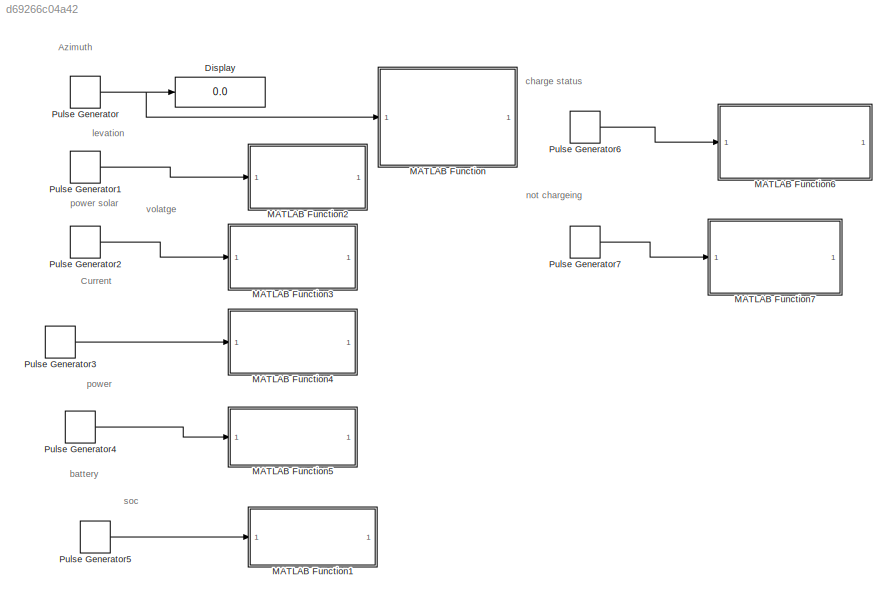
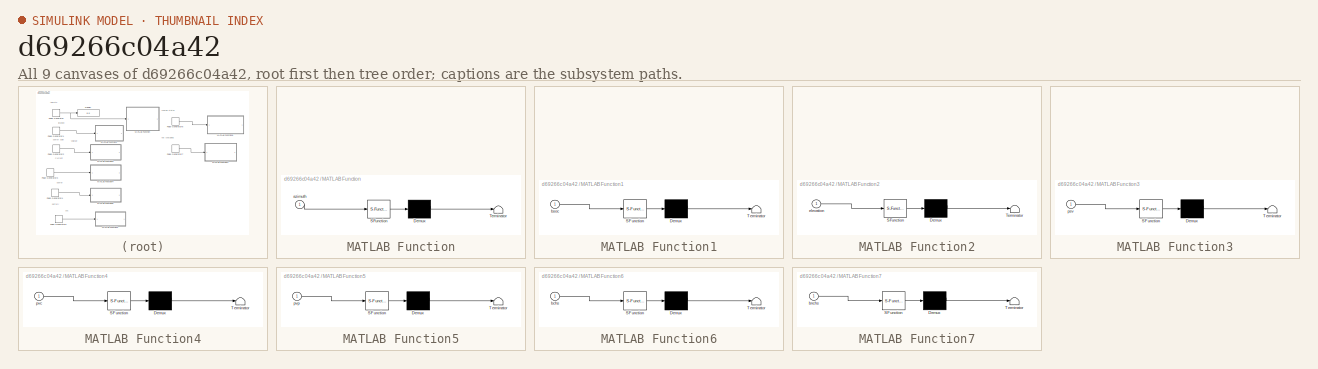
[diagram: thumbnail index - all 9 canvases of the model, root first then tree order]
MODEL slx_d69266c04a42
KIND model
CONFIG AbsTol = auto
CONFIG EnableMultiTasking = off
CONFIG FixedStep = auto
CONFIG MaxStep = auto
CONFIG MinStep = auto
CONFIG RelTol = 1e-3
CONFIG SampleTimeConstraint = Unconstrained
CONFIG SolverName = VariableStepAuto
CONFIG StartTime = 0.0
CONFIG StopTime = 10.0
BLOCK [Display] Display
  Decimation = 1
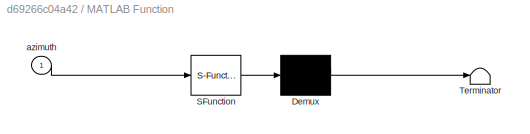
BLOCK [SubSystem] MATLAB Function
  ErrorFcn = Stateflow.Translate.translate
  PermitHierarchicalResolution = ExplicitOnly
  SFBlockType = MATLAB Function
  TreatAsAtomicUnit = on
BLOCK [Demux] MATLAB Function/ Demux 
  Outputs = 1
BLOCK [S-Function] MATLAB Function/ SFunction 
  EnableBusSupport = on
  FunctionName = sf_sfun
  PortCounts = [1 1]
  SFcnIsStateOwnerBlock = off
  SFunctionDeploymentMode = off
  Tag = Stateflow S-Function 2
BLOCK [Terminator] MATLAB Function/ Terminator 
BLOCK [Inport] MATLAB Function/azimuth
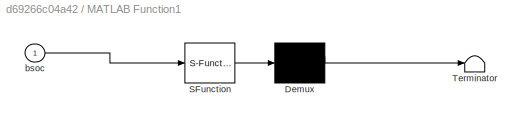
BLOCK [SubSystem] MATLAB Function1
  ErrorFcn = Stateflow.Translate.translate
  PermitHierarchicalResolution = ExplicitOnly
  SFBlockType = MATLAB Function
  TreatAsAtomicUnit = on
BLOCK [Demux] MATLAB Function1/ Demux 
  Outputs = 1
BLOCK [S-Function] MATLAB Function1/ SFunction 
  EnableBusSupport = on
  FunctionName = sf_sfun
  PortCounts = [1 1]
  SFcnIsStateOwnerBlock = off
  SFunctionDeploymentMode = off
  Tag = Stateflow S-Function 1
BLOCK [Terminator] MATLAB Function1/ Terminator 
BLOCK [Inport] MATLAB Function1/bsoc
BLOCK [SubSystem] MATLAB Function2
  ErrorFcn = Stateflow.Translate.translate
  PermitHierarchicalResolution = ExplicitOnly
  SFBlockType = MATLAB Function
  TreatAsAtomicUnit = on
BLOCK [Demux] MATLAB Function2/ Demux 
  Outputs = 1
BLOCK [S-Function] MATLAB Function2/ SFunction 
  EnableBusSupport = on
  FunctionName = sf_sfun
  PortCounts = [1 1]
  SFcnIsStateOwnerBlock = off
  SFunctionDeploymentMode = off
  Tag = Stateflow S-Function 3
BLOCK [Terminator] MATLAB Function2/ Terminator 
BLOCK [Inport] MATLAB Function2/elevation
BLOCK [SubSystem] MATLAB Function3
  ErrorFcn = Stateflow.Translate.translate
  PermitHierarchicalResolution = ExplicitOnly
  SFBlockType = MATLAB Function
  TreatAsAtomicUnit = on
BLOCK [Demux] MATLAB Function3/ Demux 
  Outputs = 1
BLOCK [S-Function] MATLAB Function3/ SFunction 
  EnableBusSupport = on
  FunctionName = sf_sfun
  PortCounts = [1 1]
  SFcnIsStateOwnerBlock = off
  SFunctionDeploymentMode = off
  Tag = Stateflow S-Function 4
BLOCK [Terminator] MATLAB Function3/ Terminator 
BLOCK [Inport] MATLAB Function3/psv
BLOCK [SubSystem] MATLAB Function4
  ErrorFcn = Stateflow.Translate.translate
  PermitHierarchicalResolution = ExplicitOnly
  SFBlockType = MATLAB Function
  TreatAsAtomicUnit = on
BLOCK [Demux] MATLAB Function4/ Demux 
  Outputs = 1
BLOCK [S-Function] MATLAB Function4/ SFunction 
  EnableBusSupport = on
  FunctionName = sf_sfun
  PortCounts = [1 1]
  SFcnIsStateOwnerBlock = off
  SFunctionDeploymentMode = off
  Tag = Stateflow S-Function 5
BLOCK [Terminator] MATLAB Function4/ Terminator 
BLOCK [Inport] MATLAB Function4/pvc
BLOCK [SubSystem] MATLAB Function5
  ErrorFcn = Stateflow.Translate.translate
  PermitHierarchicalResolution = ExplicitOnly
  SFBlockType = MATLAB Function
  TreatAsAtomicUnit = on
BLOCK [Demux] MATLAB Function5/ Demux 
  Outputs = 1
BLOCK [S-Function] MATLAB Function5/ SFunction 
  EnableBusSupport = on
  FunctionName = sf_sfun
  PortCounts = [1 1]
  SFcnIsStateOwnerBlock = off
  SFunctionDeploymentMode = off
  Tag = Stateflow S-Function 6
BLOCK [Terminator] MATLAB Function5/ Terminator 
BLOCK [Inport] MATLAB Function5/pvp
BLOCK [SubSystem] MATLAB Function6
  ErrorFcn = Stateflow.Translate.translate
  PermitHierarchicalResolution = ExplicitOnly
  SFBlockType = MATLAB Function
  TreatAsAtomicUnit = on
BLOCK [Demux] MATLAB Function6/ Demux 
  Outputs = 1
BLOCK [S-Function] MATLAB Function6/ SFunction 
  EnableBusSupport = on
  FunctionName = sf_sfun
  PortCounts = [1 1]
  SFcnIsStateOwnerBlock = off
  SFunctionDeploymentMode = off
  Tag = Stateflow S-Function 7
BLOCK [Terminator] MATLAB Function6/ Terminator 
BLOCK [Inport] MATLAB Function6/bchs
BLOCK [SubSystem] MATLAB Function7
  ErrorFcn = Stateflow.Translate.translate
  PermitHierarchicalResolution = ExplicitOnly
  SFBlockType = MATLAB Function
  TreatAsAtomicUnit = on
BLOCK [Demux] MATLAB Function7/ Demux 
  Outputs = 1
BLOCK [S-Function] MATLAB Function7/ SFunction 
  EnableBusSupport = on
  FunctionName = sf_sfun
  PortCounts = [1 1]
  SFcnIsStateOwnerBlock = off
  SFunctionDeploymentMode = off
  Tag = Stateflow S-Function 8
BLOCK [Terminator] MATLAB Function7/ Terminator 
BLOCK [Inport] MATLAB Function7/bnchs
BLOCK [DiscretePulseGenerator] Pulse Generator
  Period = 10
  PulseType = Time based
  PulseWidth = 5
BLOCK [DiscretePulseGenerator] Pulse Generator1
  Period = 10
  PulseType = Time based
  PulseWidth = 5
BLOCK [DiscretePulseGenerator] Pulse Generator2
  Period = 10
  PulseType = Time based
  PulseWidth = 5
BLOCK [DiscretePulseGenerator] Pulse Generator3
  Period = 10
  PulseType = Time based
  PulseWidth = 5
BLOCK [DiscretePulseGenerator] Pulse Generator4
  Period = 10
  PulseType = Time based
  PulseWidth = 5
BLOCK [DiscretePulseGenerator] Pulse Generator5
  Period = 10
  PulseType = Time based
  PulseWidth = 5
BLOCK [DiscretePulseGenerator] Pulse Generator6
  Period = 10
  PulseType = Time based
  PulseWidth = 5
BLOCK [DiscretePulseGenerator] Pulse Generator7
  Period = 10
  PulseType = Time based
  PulseWidth = 5
ANNOTATION (root): levation
ANNOTATION (root): Azimuth
ANNOTATION (root): Current
ANNOTATION (root): battery
ANNOTATION (root): charge status
ANNOTATION (root): not chargeing
ANNOTATION (root): power
ANNOTATION (root): power solar
ANNOTATION (root): soc
ANNOTATION (root): volatge
LINE Pulse Generator1:1 -> MATLAB Function2:1
LINE Pulse Generator2:1 -> MATLAB Function3:1
LINE Pulse Generator3:1 -> MATLAB Function4:1
LINE Pulse Generator4:1 -> MATLAB Function5:1
LINE Pulse Generator5:1 -> MATLAB Function1:1
LINE Pulse Generator6:1 -> MATLAB Function6:1
LINE Pulse Generator7:1 -> MATLAB Function7:1
NET Pulse Generator:1 -> Display:1, MATLAB Function:1
note: NET lines group one-source signal fan-out (src -> all destinations, sorted); 1:1 wires keep LINE
CHART MATLAB Function states=1 transitions=1
  STATE_LABEL 'eML_blk_kernel()'
  STATE_LABEL "SCRIPT:\nfunction sendAzimuthToWorkspace(azimuth)\n    %#codegen\n\n    % Access the shared variable using the Data Store Memory block\n    coder.extrinsic('evalin');\n    coder.extrinsic('assignin');\n    coder.extrinsic('pause'); % Enable use of the pause function\n\n    % Read the current stored array from the workspace\n    tsAzimuth = evalin('base', 'tsAzimuth');\n\n    % Initialize if the variable is em...<+577ch>"
CHART MATLAB Function2 states=1 transitions=1
  STATE_LABEL 'eML_blk_kernel()'
  STATE_LABEL "SCRIPT:\nfunction sendElevationToWorkspace(elevation)\n    %#codegen\n\n    % Access the shared variable using the Data Store Memory block\n    coder.extrinsic('evalin');\n    coder.extrinsic('assignin');\n    coder.extrinsic('pause'); % Enable use of the pause function\n\n    % Read the current stored array from the workspace\n    tsElevation = evalin('base', 'tsElevation');\n\n    % Initialize if the variab...<+611ch>"
CHART MATLAB Function3 states=1 transitions=1
  STATE_LABEL 'eML_blk_kernel()'
  STATE_LABEL "SCRIPT:\nfunction sendPSVToWorkspace(psv)\n    %#codegen\n\n    % Access the shared variable using the Data Store Memory block\n    coder.extrinsic('evalin');\n    coder.extrinsic('assignin');\n    coder.extrinsic('pause'); % Enable use of the pause function\n\n    % Read the current stored array from the workspace\n    tspsv = evalin('base', 'tspsv');\n\n    % Initialize if the variable is empty\n    if isemp...<+492ch>"
CHART MATLAB Function4 states=1 transitions=1
  STATE_LABEL 'eML_blk_kernel()'
  STATE_LABEL "SCRIPT:\nfunction sendPVCToWorkspace(pvc)\n    %#codegen\n\n    % Access the shared variable using the Data Store Memory block\n    coder.extrinsic('evalin');\n    coder.extrinsic('assignin');\n    coder.extrinsic('pause'); % Enable use of the pause function\n\n    % Read the current stored array from the workspace\n    tspvc = evalin('base', 'tspvc');\n\n    % Initialize if the variable is empty\n    if isemp...<+492ch>"
CHART MATLAB Function5 states=1 transitions=1
  STATE_LABEL 'eML_blk_kernel()'
  STATE_LABEL "SCRIPT:\nfunction sendPVPToWorkspace(pvp)\n    %#codegen\n\n    % Access the shared variable using the Data Store Memory block\n    coder.extrinsic('evalin');\n    coder.extrinsic('assignin');\n    coder.extrinsic('pause'); % Enable use of the pause function\n\n    % Read the current stored array from the workspace\n    tspvp = evalin('base', 'tspvp');\n\n    % Initialize if the variable is empty\n    if isemp...<+492ch>"
CHART MATLAB Function6 states=1 transitions=1
  STATE_LABEL 'eML_blk_kernel()'
  STATE_LABEL "SCRIPT:\nfunction sendBCHSToWorkspace(bchs)\n    %#codegen\n\n    % Access the shared variable using the Data Store Memory block\n    coder.extrinsic('evalin');\n    coder.extrinsic('assignin');\n    coder.extrinsic('pause'); % Enable use of the pause function\n\n    % Read the current stored array from the workspace\n    tsbchs = evalin('base', 'tsbchs');\n\n    % Initialize if the variable is empty\n    if i...<+509ch>"
CHART MATLAB Function7 states=1 transitions=1
  STATE_LABEL 'eML_blk_kernel()'
  STATE_LABEL "SCRIPT:\nfunction sendBNCHSToWorkspace(bnchs)\n    %#codegen\n\n    % Access the shared variable using the Data Store Memory block\n    coder.extrinsic('evalin');\n    coder.extrinsic('assignin');\n    coder.extrinsic('pause'); % Enable use of the pause function\n\n    % Read the current stored array from the workspace\n    tsbnchs = evalin('base', 'tsbnchs');\n\n    % Initialize if the variable is empty\n    ...<+526ch>"
CHART MATLAB Function1 states=1 transitions=1
  STATE_LABEL 'eML_blk_kernel()'
  STATE_LABEL "SCRIPT:\nfunction sendBSOCToWorkspace(bsoc)\n    %#codegen\n\n    % Access the shared variable using the Data Store Memory block\n    coder.extrinsic('evalin');\n    coder.extrinsic('assignin');\n    coder.extrinsic('pause'); % Enable use of the pause function\n\n    % Read the current stored array from the workspace\n    tsbsoc = evalin('base', 'tsbsoc');\n\n    % Initialize if the variable is empty\n    if i...<+509ch>"
CHART  states=0 transitions=0
CHART  states=0 transitions=0
CHART  states=0 transitions=0
CHART  states=0 transitions=0
CHART  states=0 transitions=0
CHART  states=0 transitions=0
CHART  states=0 transitions=0
CHART  states=0 transitions=0
